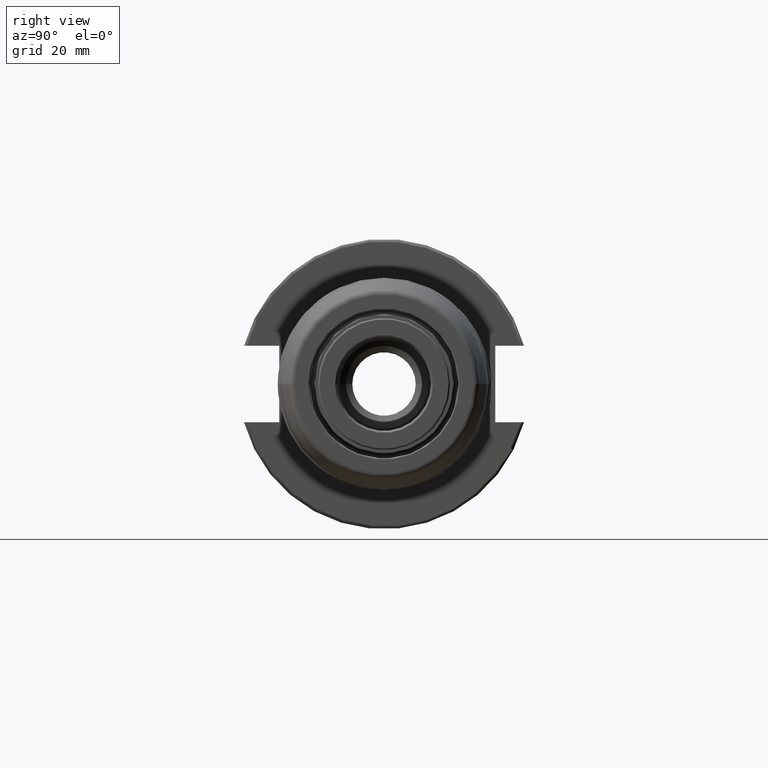
[diagram: clean part render]
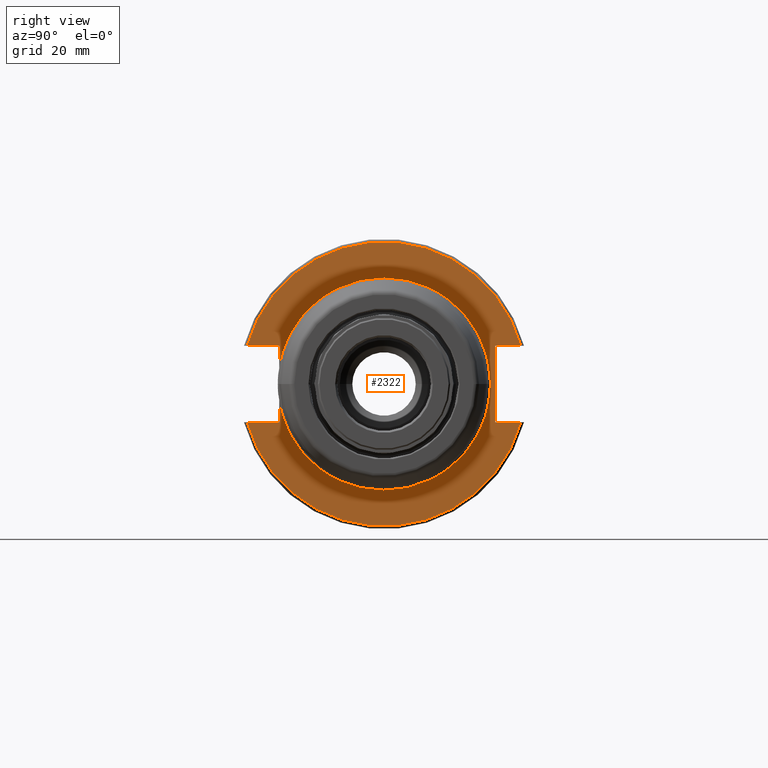
[diagram: same view with one face highlighted and labeled with its STEP entity id]
A machine part, right view. The second image highlights one B-rep face of the part: STEP entity #2322.
In plain terms, the highlighted planar face has unit normal (1, 0, 0).
Its self-contained STEP definition (entity closure, byte-faithful):
#584=CARTESIAN_POINT('',(1.905E1,0.E0,0.E0));
#585=DIRECTION('',(-1.E0,0.E0,0.E0));
#586=DIRECTION('',(0.E0,1.E0,0.E0));
#587=AXIS2_PLACEMENT_3D('',#584,#585,#586);
#589=CARTESIAN_POINT('',(1.905E1,0.E0,0.E0));
#590=DIRECTION('',(-1.E0,0.E0,0.E0));
#591=DIRECTION('',(0.E0,-9.881701312832E-1,1.533616367926E-1));
#592=AXIS2_PLACEMENT_3D('',#589,#590,#591);
#594=DIRECTION('',(0.E0,8.259478153842E-6,9.999999999659E-1));
#595=VECTOR('',#594,7.444828660501E0);
#596=CARTESIAN_POINT('',(1.905E1,-3.550006149040E1,5.509171339753E0));
#597=LINE('',#596,#595);
#598=DIRECTION('',(0.E0,1.E0,0.E0));
#599=VECTOR('',#598,1.093620191876E1);
#600=CARTESIAN_POINT('',(1.905E1,-4.643620191876E1,1.2954E1));
#601=LINE('',#600,#599);
#602=DIRECTION('',(0.E0,-1.E0,0.E0));
#603=VECTOR('',#602,8.736201918762E0);
#604=CARTESIAN_POINT('',(1.905E1,4.643620191876E1,1.2954E1));
#605=LINE('',#604,#603);
#606=DIRECTION('',(0.E0,0.E0,-1.E0));
#607=VECTOR('',#606,2.5908E1);
#608=CARTESIAN_POINT('',(1.905E1,3.77E1,1.2954E1));
#609=LINE('',#608,#607);
#610=DIRECTION('',(0.E0,-1.E0,0.E0));
#611=VECTOR('',#610,8.736201918762E0);
#612=CARTESIAN_POINT('',(1.905E1,4.643620191876E1,-1.2954E1));
#613=LINE('',#612,#611);
#614=DIRECTION('',(0.E0,1.E0,0.E0));
#615=VECTOR('',#614,1.093620191876E1);
#616=CARTESIAN_POINT('',(1.905E1,-4.643620191876E1,-1.2954E1));
#617=LINE('',#616,#615);
#618=DIRECTION('',(0.E0,-2.063592229960E-6,9.999999999979E-1));
#619=VECTOR('',#618,7.450444075787E0);
#620=CARTESIAN_POINT('',(1.905E1,-3.55E1,-1.2954E1));
#621=LINE('',#620,#619);
#676=CARTESIAN_POINT('',(1.905E1,-4.643620191876E1,-1.2954E1));
#777=CARTESIAN_POINT('',(1.905E1,-4.643620191876E1,1.2954E1));
#839=CARTESIAN_POINT('',(1.905E1,4.643620191876E1,-1.2954E1));
#880=CARTESIAN_POINT('',(1.905E1,4.643620191876E1,1.2954E1));
#941=CARTESIAN_POINT('',(1.905E1,0.E0,0.E0));
#942=DIRECTION('',(1.E0,0.E0,0.E0));
#943=DIRECTION('',(0.E0,9.632228271525E-1,2.687038988409E-1));
#944=AXIS2_PLACEMENT_3D('',#941,#942,#943);
#1051=CARTESIAN_POINT('',(1.905E1,0.E0,0.E0));
#1052=DIRECTION('',(1.E0,0.E0,0.E0));
#1053=DIRECTION('',(0.E0,-9.632228271525E-1,-2.687038988409E-1));
#1054=AXIS2_PLACEMENT_3D('',#1051,#1052,#1053);
#1120=CARTESIAN_POINT('',(1.905E1,3.77E1,1.2954E1));
#1121=CARTESIAN_POINT('',(1.905E1,3.77E1,-1.2954E1));
#1122=VERTEX_POINT('',#1120);
#1123=VERTEX_POINT('',#1121);
#1168=CARTESIAN_POINT('',(1.905E1,-3.55E1,1.2954E1));
#1169=VERTEX_POINT('',#1168);
#1170=CARTESIAN_POINT('',(1.905E1,-3.55E1,-1.2954E1));
#1171=VERTEX_POINT('',#1170);
#1247=VERTEX_POINT('',#676);
#1248=VERTEX_POINT('',#839);
#1251=VERTEX_POINT('',#880);
#1252=VERTEX_POINT('',#777);
#1350=CARTESIAN_POINT('',(1.905E1,3.5925E1,0.E0));
#1351=CARTESIAN_POINT('',(1.905E1,-3.550269605913E1,-5.492194236631E0));
#1352=VERTEX_POINT('',#1350);
#1353=VERTEX_POINT('',#1351);
#1354=CARTESIAN_POINT('',(1.905E1,-3.550001196635E1,5.509516801775E0));
#1355=VERTEX_POINT('',#1354);
#2294=CARTESIAN_POINT('',(1.905E1,0.E0,0.E0));
#2295=DIRECTION('',(1.E0,0.E0,0.E0));
#2296=DIRECTION('',(0.E0,0.E0,1.E0));
#2297=AXIS2_PLACEMENT_3D('',#2294,#2295,#2296);
#2298=PLANE('',#2297);
#2300=ORIENTED_EDGE('',*,*,#2299,.F.);
#2301=ORIENTED_EDGE('',*,*,#2282,.F.);
#2303=ORIENTED_EDGE('',*,*,#2302,.T.);
#2305=ORIENTED_EDGE('',*,*,#2304,.F.);
#2307=ORIENTED_EDGE('',*,*,#2306,.F.);
#2309=ORIENTED_EDGE('',*,*,#2308,.T.);
#2311=ORIENTED_EDGE('',*,*,#2310,.T.);
#2313=ORIENTED_EDGE('',*,*,#2312,.F.);
#2315=ORIENTED_EDGE('',*,*,#2314,.F.);
#2317=ORIENTED_EDGE('',*,*,#2316,.T.);
#2319=ORIENTED_EDGE('',*,*,#2318,.T.);
#2320=EDGE_LOOP('',(#2300,#2301,#2303,#2305,#2307,#2309,#2311,#2313,#2315,#2317,
#2319));
#2321=FACE_OUTER_BOUND('',#2320,.F.);
#2322=ADVANCED_FACE('',(#2321),#2298,.T.);
#588=CIRCLE('',#587,3.5925E1);
#593=CIRCLE('',#592,3.5925E1);
#945=CIRCLE('',#944,4.82092E1);
#1055=CIRCLE('',#1054,4.82092E1);
#2282=EDGE_CURVE('',#1355,#1352,#593,.T.);
#2299=EDGE_CURVE('',#1352,#1353,#588,.T.);
#2302=EDGE_CURVE('',#1355,#1169,#597,.T.);
#2304=EDGE_CURVE('',#1252,#1169,#601,.T.);
#2306=EDGE_CURVE('',#1251,#1252,#945,.T.);
#2308=EDGE_CURVE('',#1251,#1122,#605,.T.);
#2310=EDGE_CURVE('',#1122,#1123,#609,.T.);
#2312=EDGE_CURVE('',#1248,#1123,#613,.T.);
#2314=EDGE_CURVE('',#1247,#1248,#1055,.T.);
#2316=EDGE_CURVE('',#1247,#1171,#617,.T.);
#2318=EDGE_CURVE('',#1171,#1353,#621,.T.);